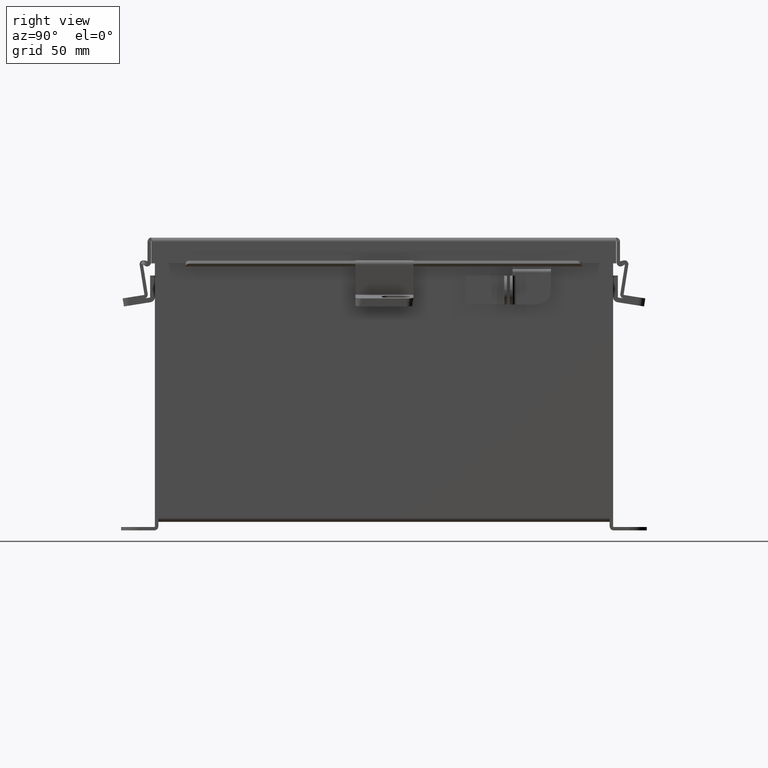
[diagram: clean part render]
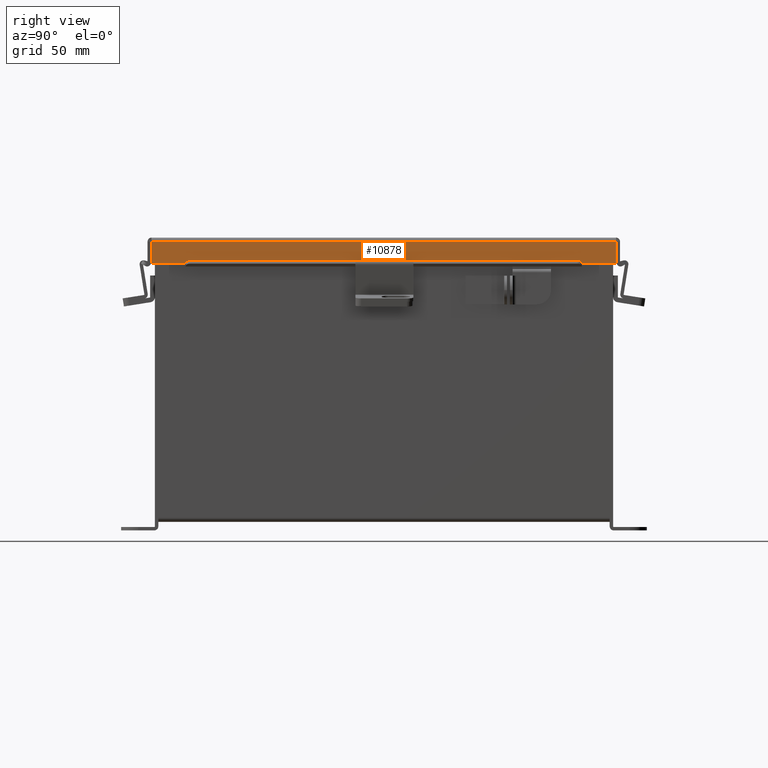
[diagram: same view with one face highlighted and labeled with its STEP entity id]
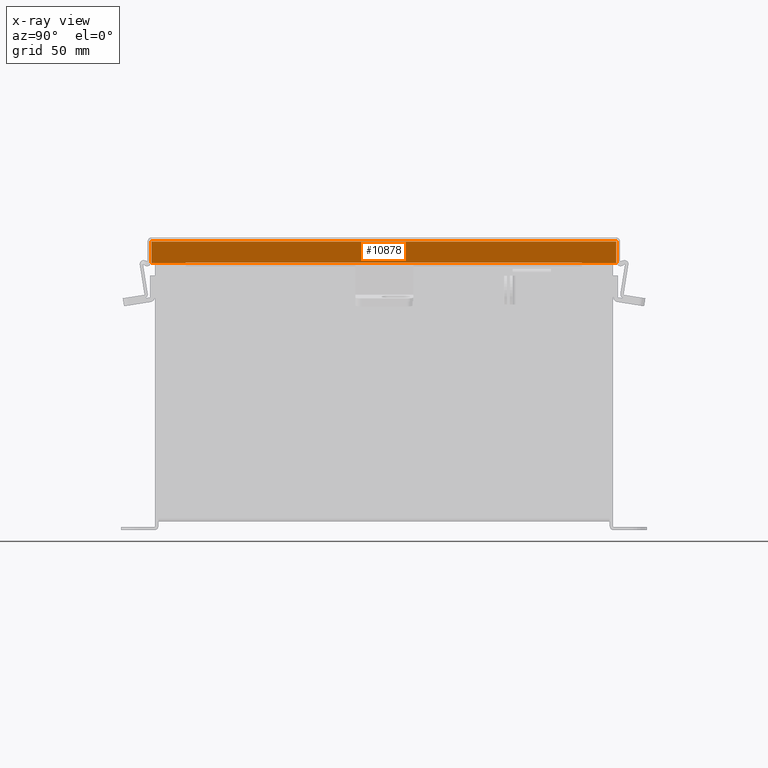
[diagram: x-ray of the same camera — body ghosted, the highlighted face saturated]
A machine part, right view. The second image highlights one B-rep face of the part: STEP entity #10878.
The next image is the same camera in x-ray: the body ghosted, the highlighted face saturated — about 0% of this face is hidden behind the body in this view.
In plain terms, the highlighted planar face has unit normal (-1, 0, -0).
Its self-contained STEP definition (entity closure, byte-faithful):
#25 = ORIENTED_EDGE ( 'NONE', *, *, #12965, .F. ) ;
#147 = DIRECTION ( 'NONE',  ( -3.363654414526078100E-015, 0.0000000000000000000, 1.000000000000000000 ) ) ;
#570 = ORIENTED_EDGE ( 'NONE', *, *, #7856, .F. ) ;
#575 = EDGE_LOOP ( 'NONE', ( #570, #7755, #4589, #14349, #5586, #8988, #15904, #25 ) ) ;
#1524 = VERTEX_POINT ( 'NONE', #13249 ) ;
#1616 = VERTEX_POINT ( 'NONE', #14946 ) ;
#3395 = VERTEX_POINT ( 'NONE', #15091 ) ;
#3414 = LINE ( 'NONE', #13046, #6413 ) ;
#3444 = LINE ( 'NONE', #13626, #9814 ) ;
#3555 = CARTESIAN_POINT ( 'NONE',  ( -4.156250000000000900, 5.074478932188133800, 0.4872999999999997300 ) ) ;
#4207 = CARTESIAN_POINT ( 'NONE',  ( -4.156250000000000000, 0.0000000000000000000, -1.424100231638559400E-014 ) ) ;
#4292 = CARTESIAN_POINT ( 'NONE',  ( -4.156250000000000000, 4.324478932188132100, 0.4717115427318799800 ) ) ;
#4589 = ORIENTED_EDGE ( 'NONE', *, *, #12834, .F. ) ;
#5070 = CARTESIAN_POINT ( 'NONE',  ( -4.156250000000000900, -5.074478932188135600, 0.4872999999999997300 ) ) ;
#5143 = VECTOR ( 'NONE', #147, 39.37007874015748100 ) ;
#5261 = CARTESIAN_POINT ( 'NONE',  ( -4.156250000000000900, 0.0000000000000000000, 0.4872999999999997300 ) ) ;
#5318 = DIRECTION ( 'NONE',  ( -0.0000000000000000000, 1.000000000000000000, 0.0000000000000000000 ) ) ;
#5460 = DIRECTION ( 'NONE',  ( 1.051488783018144300E-013, 3.504962610060481100E-014, -1.000000000000000000 ) ) ;
#5492 = DIRECTION ( 'NONE',  ( 1.000000000000000000, 0.0000000000000000000, 3.363654414526078100E-015 ) ) ;
#5586 = ORIENTED_EDGE ( 'NONE', *, *, #12153, .T. ) ;
#5991 = VERTEX_POINT ( 'NONE', #5070 ) ;
#6413 = VECTOR ( 'NONE', #5460, 39.37007874015748100 ) ;
#6711 = EDGE_CURVE ( 'NONE', #11878, #1616, #3444, .T. ) ;
#7312 = DIRECTION ( 'NONE',  ( -0.0000000000000000000, 1.000000000000000000, -0.0000000000000000000 ) ) ;
#7354 = LINE ( 'NONE', #13203, #10305 ) ;
#7410 = CARTESIAN_POINT ( 'NONE',  ( -4.156250000000000000, -4.324478932188133800, 0.4717115427318799800 ) ) ;
#7755 = ORIENTED_EDGE ( 'NONE', *, *, #8939, .T. ) ;
#7856 = EDGE_CURVE ( 'NONE', #1524, #3395, #3414, .T. ) ;
#8124 = VECTOR ( 'NONE', #12474, 39.37007874015748100 ) ;
#8507 = CARTESIAN_POINT ( 'NONE',  ( -4.156250000000000900, -4.324478932188133800, 0.4717115427318799800 ) ) ;
#8939 = EDGE_CURVE ( 'NONE', #1524, #13504, #15551, .T. ) ;
#8988 = ORIENTED_EDGE ( 'NONE', *, *, #10946, .T. ) ;
#9076 = CARTESIAN_POINT ( 'NONE',  ( -4.156250000000000000, -5.074478932188135600, -1.424100231638559400E-014 ) ) ;
#9177 = CARTESIAN_POINT ( 'NONE',  ( -4.156250000000000000, 5.074478932188133800, -2.512649847650986200E-016 ) ) ;
#9696 = LINE ( 'NONE', #4292, #12642 ) ;
#9814 = VECTOR ( 'NONE', #7312, 39.37007874015748100 ) ;
#10305 = VECTOR ( 'NONE', #14474, 39.37007874015748100 ) ;
#10878 = ADVANCED_FACE ( 'NONE', ( #11895 ), #11795, .F. ) ;
#10943 = CARTESIAN_POINT ( 'NONE',  ( -4.156250000000000000, -5.074478932188135600, 0.01299999999999986400 ) ) ;
#10946 = EDGE_CURVE ( 'NONE', #5991, #12602, #7354, .T. ) ;
#11654 = VECTOR ( 'NONE', #15480, 39.37007874015748100 ) ;
#11795 = PLANE ( 'NONE',  #11799 ) ;
#11799 = AXIS2_PLACEMENT_3D ( 'NONE', #4207, #5492, #14369 ) ;
#11878 = VERTEX_POINT ( 'NONE', #10943 ) ;
#11882 = LINE ( 'NONE', #9076, #5143 ) ;
#11895 = FACE_OUTER_BOUND ( 'NONE', #575, .T. ) ;
#12059 = LINE ( 'NONE', #9177, #11654 ) ;
#12147 = VECTOR ( 'NONE', #5318, 39.37007874015748100 ) ;
#12153 = EDGE_CURVE ( 'NONE', #11878, #5991, #11882, .T. ) ;
#12474 = DIRECTION ( 'NONE',  ( -7.009925220120839700E-014, -1.401985044024167900E-013, 1.000000000000000000 ) ) ;
#12510 = VERTEX_POINT ( 'NONE', #8507 ) ;
#12602 = VERTEX_POINT ( 'NONE', #16275 ) ;
#12617 = EDGE_CURVE ( 'NONE', #12510, #12602, #16062, .T. ) ;
#12642 = VECTOR ( 'NONE', #16241, 39.37007874015748100 ) ;
#12834 = EDGE_CURVE ( 'NONE', #1616, #13504, #12059, .T. ) ;
#12965 = EDGE_CURVE ( 'NONE', #3395, #12510, #9696, .T. ) ;
#13046 = CARTESIAN_POINT ( 'NONE',  ( -4.156250000000000900, 4.324478932188133000, 0.4872999999999997300 ) ) ;
#13203 = CARTESIAN_POINT ( 'NONE',  ( -4.156250000000000900, 0.0000000000000000000, 0.4872999999999997300 ) ) ;
#13249 = CARTESIAN_POINT ( 'NONE',  ( -4.156250000000000900, 4.324478932188133000, 0.4872999999999997300 ) ) ;
#13504 = VERTEX_POINT ( 'NONE', #3555 ) ;
#13626 = CARTESIAN_POINT ( 'NONE',  ( -4.156250000000000000, 5.156249999999999100, 0.01299999999999986400 ) ) ;
#14349 = ORIENTED_EDGE ( 'NONE', *, *, #6711, .F. ) ;
#14369 = DIRECTION ( 'NONE',  ( 3.363654414526078100E-015, 0.0000000000000000000, -1.000000000000000000 ) ) ;
#14474 = DIRECTION ( 'NONE',  ( -0.0000000000000000000, 1.000000000000000000, 0.0000000000000000000 ) ) ;
#14946 = CARTESIAN_POINT ( 'NONE',  ( -4.156250000000000000, 5.074478932188133800, 0.01299999999999985900 ) ) ;
#15091 = CARTESIAN_POINT ( 'NONE',  ( -4.156250000000000900, 4.324478932188133800, 0.4717115427318799800 ) ) ;
#15480 = DIRECTION ( 'NONE',  ( -3.363654414526078100E-015, 0.0000000000000000000, 1.000000000000000000 ) ) ;
#15551 = LINE ( 'NONE', #5261, #12147 ) ;
#15904 = ORIENTED_EDGE ( 'NONE', *, *, #12617, .F. ) ;
#16062 = LINE ( 'NONE', #7410, #8124 ) ;
#16241 = DIRECTION ( 'NONE',  ( -0.0000000000000000000, -1.000000000000000000, -0.0000000000000000000 ) ) ;
#16275 = CARTESIAN_POINT ( 'NONE',  ( -4.156250000000000900, -4.324478932188134700, 0.4872999999999997300 ) ) ;